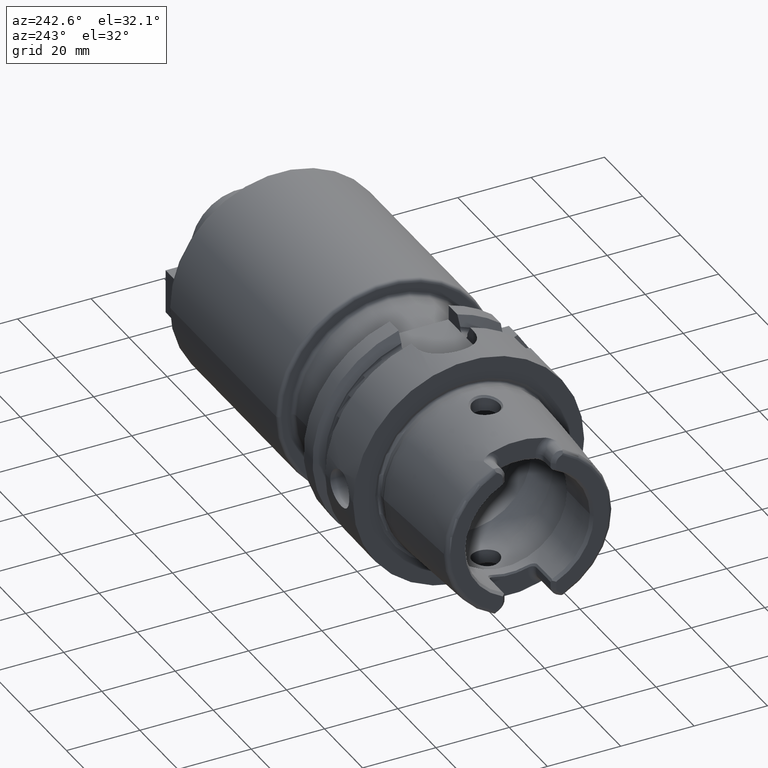
[diagram: clean part render]
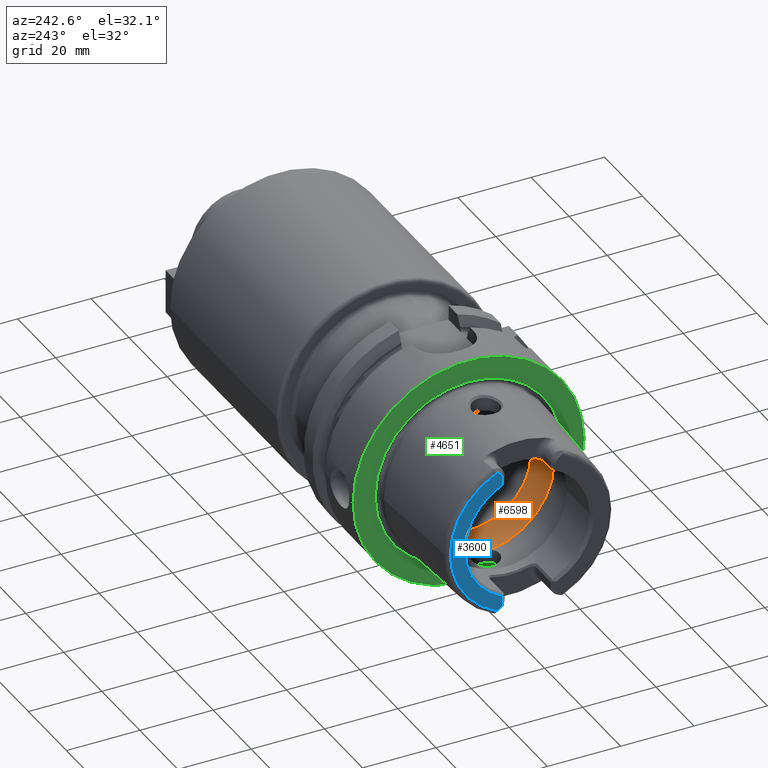
[diagram: same view with three faces highlighted in distinct colors, each labeled with its STEP entity id]
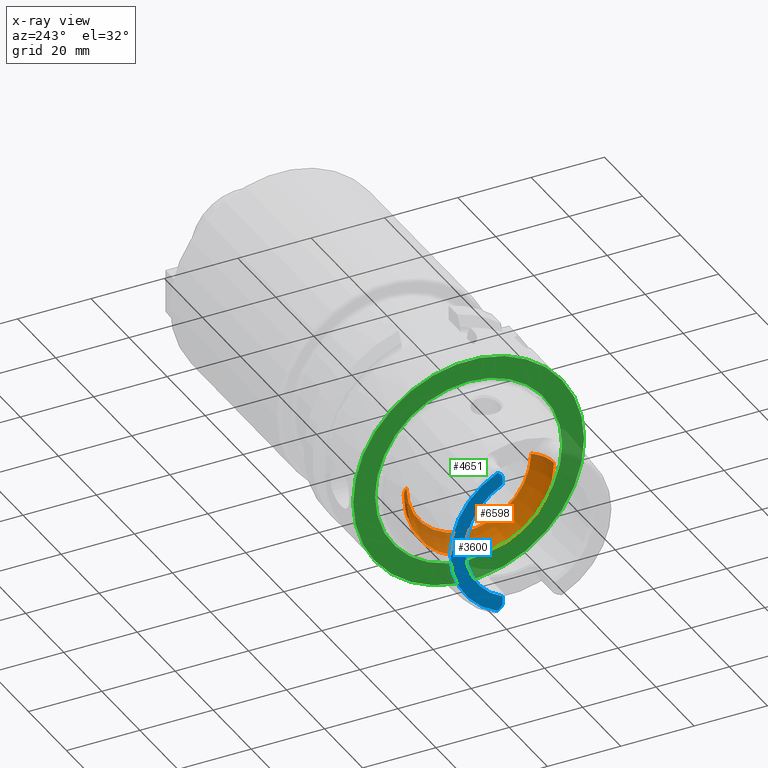
[diagram: x-ray of the same camera — body ghosted, the three highlighted faces saturated]
A machine part, auxiliary view with three faces highlighted in distinct colors.
The next image is the same camera in x-ray (body ghosted, the three faces saturated) — at least one of them is partly hidden behind the body in this view.
Their STEP definitions:

[orange] entity #6598 — the highlighted toroidal blend (fillet) surface has major radius 12 mm and minor (blend) radius 8 mm.
#2586=CARTESIAN_POINT('',(-6.344997998398E0,0.E0,0.E0));
#2587=DIRECTION('',(-1.E0,0.E0,0.E0));
#2588=DIRECTION('',(0.E0,-1.324147307845E-1,-9.911944002421E-1));
#2589=AXIS2_PLACEMENT_3D('',#2586,#2587,#2588);
#2599=CARTESIAN_POINT('',(-6.344997998398E0,0.E0,0.E0));
#2600=DIRECTION('',(-1.E0,0.E0,0.E0));
#2601=DIRECTION('',(0.E0,1.E0,0.E0));
#2602=AXIS2_PLACEMENT_3D('',#2599,#2600,#2601);
#2604=CARTESIAN_POINT('',(-6.344997998398E0,2.648294615690E0,
-1.982388800484E1));
#2605=CARTESIAN_POINT('',(-6.231006837183E0,2.534014746903E0,
-1.983915477598E1));
#2606=CARTESIAN_POINT('',(-6.017025196500E0,2.289847772066E0,
-1.986482090135E1));
#2607=CARTESIAN_POINT('',(-5.744951143506E0,1.883597112482E0,
-1.989126748234E1));
#2608=CARTESIAN_POINT('',(-5.525878619397E0,1.440092942940E0,
-1.990841427492E1));
#2609=CARTESIAN_POINT('',(-5.367928580614E0,9.752961668640E-1,
-1.991846807626E1));
#2610=CARTESIAN_POINT('',(-5.271318281982E0,4.905129038781E-1,
-1.992366853166E1));
#2611=CARTESIAN_POINT('',(-5.25E0,1.634283701959E-1,-1.992470689575E1));
#2612=CARTESIAN_POINT('',(-5.25E0,0.E0,-1.992470689575E1));
#2614=CARTESIAN_POINT('',(-6.344997998398E0,1.2E1,0.E0));
#2615=DIRECTION('',(0.E0,0.E0,1.E0));
#2616=DIRECTION('',(7.806247497998E-1,6.25E-1,0.E0));
#2617=AXIS2_PLACEMENT_3D('',#2614,#2615,#2616);
#2619=CARTESIAN_POINT('',(-1.E-1,0.E0,0.E0));
#2620=DIRECTION('',(-1.E0,0.E0,0.E0));
#2621=DIRECTION('',(0.E0,1.E0,0.E0));
#2622=AXIS2_PLACEMENT_3D('',#2619,#2620,#2621);
#2624=CARTESIAN_POINT('',(-6.344997998398E0,-1.2E1,0.E0));
#2625=DIRECTION('',(0.E0,0.E0,-1.E0));
#2626=DIRECTION('',(7.806247497998E-1,-6.25E-1,0.E0));
#2627=AXIS2_PLACEMENT_3D('',#2624,#2625,#2626);
#2629=CARTESIAN_POINT('',(-5.25E0,0.E0,-1.992470689575E1));
#2630=CARTESIAN_POINT('',(-5.25E0,-1.633406105217E-1,-1.992470689575E1));
#2631=CARTESIAN_POINT('',(-5.271288835069E0,-4.903023440841E-1,
-1.992367004204E1));
#2632=CARTESIAN_POINT('',(-5.367909615515E0,-9.752378390196E-1,
-1.991846919896E1));
#2633=CARTESIAN_POINT('',(-5.525833514658E0,-1.439976302563E0,
-1.990841729053E1));
#2634=CARTESIAN_POINT('',(-5.744910891080E0,-1.883544144465E0,
-1.989127157512E1));
#2635=CARTESIAN_POINT('',(-6.017104191130E0,-2.289956477197E0,
-1.986481279983E1));
#2636=CARTESIAN_POINT('',(-6.231050600033E0,-2.534058620591E0,
-1.983914891484E1));
#2637=CARTESIAN_POINT('',(-6.344997998398E0,-2.648294615690E0,
-1.982388800484E1));
#2893=CARTESIAN_POINT('',(-1.E-1,1.7E1,0.E0));
#2894=VERTEX_POINT('',#2893);
#2895=CARTESIAN_POINT('',(-6.344997998398E0,2.E1,0.E0));
#2896=VERTEX_POINT('',#2895);
#2905=CARTESIAN_POINT('',(-1.E-1,-1.7E1,0.E0));
#2906=VERTEX_POINT('',#2905);
#2907=CARTESIAN_POINT('',(-6.344997998398E0,-2.E1,0.E0));
#2908=VERTEX_POINT('',#2907);
#3080=VERTEX_POINT('',#2604);
#3081=VERTEX_POINT('',#2612);
#3082=VERTEX_POINT('',#2637);
#6583=CARTESIAN_POINT('',(-6.344997998398E0,0.E0,0.E0));
#6584=DIRECTION('',(1.E0,0.E0,0.E0));
#6585=DIRECTION('',(0.E0,-1.E0,0.E0));
#6586=AXIS2_PLACEMENT_3D('',#6583,#6584,#6585);
#6587=TOROIDAL_SURFACE('',#6586,1.2E1,8.E0);
#6588=ORIENTED_EDGE('',*,*,#6521,.F.);
#6589=ORIENTED_EDGE('',*,*,#6578,.F.);
#6590=ORIENTED_EDGE('',*,*,#6540,.F.);
#6592=ORIENTED_EDGE('',*,*,#6591,.T.);
#6593=ORIENTED_EDGE('',*,*,#6536,.T.);
#6594=ORIENTED_EDGE('',*,*,#6572,.F.);
#6595=ORIENTED_EDGE('',*,*,#6285,.F.);
#6596=EDGE_LOOP('',(#6588,#6589,#6590,#6592,#6593,#6594,#6595));
#6597=FACE_OUTER_BOUND('',#6596,.F.);
#6598=ADVANCED_FACE('',(#6597),#6587,.F.);
#2590=CIRCLE('',#2589,2.E1);
#2603=CIRCLE('',#2602,2.E1);
#2613=B_SPLINE_CURVE_WITH_KNOTS('',3,(#2604,#2605,#2606,#2607,#2608,#2609,#2610,
#2611,#2612),.UNSPECIFIED.,.F.,.F.,(4,1,1,1,1,1,4),(0.E0,1.666666666667E-1,
3.333333333333E-1,5.E-1,6.666666666667E-1,8.333333333333E-1,1.E0),
.UNSPECIFIED.);
#2618=CIRCLE('',#2617,8.E0);
#2623=CIRCLE('',#2622,1.7E1);
#2628=CIRCLE('',#2627,8.E0);
#2638=B_SPLINE_CURVE_WITH_KNOTS('',3,(#2629,#2630,#2631,#2632,#2633,#2634,#2635,
#2636,#2637),.UNSPECIFIED.,.F.,.F.,(4,1,1,1,1,1,4),(0.E0,1.666666666667E-1,
3.333333333333E-1,5.E-1,6.666666666667E-1,8.333333333333E-1,1.E0),
.UNSPECIFIED.);
#6285=EDGE_CURVE('',#3081,#3082,#2638,.T.);
#6521=EDGE_CURVE('',#3080,#3081,#2613,.T.);
#6536=EDGE_CURVE('',#2906,#2908,#2628,.T.);
#6540=EDGE_CURVE('',#2894,#2896,#2618,.T.);
#6572=EDGE_CURVE('',#3082,#2908,#2590,.T.);
#6578=EDGE_CURVE('',#2896,#3080,#2603,.T.);
#6591=EDGE_CURVE('',#2894,#2906,#2623,.T.);

[blue] entity #3600 — the highlighted planar face has unit normal (1, 0, 0).
#215=CARTESIAN_POINT('',(-3.2E1,0.E0,0.E0));
#216=DIRECTION('',(-1.E0,0.E0,0.E0));
#217=DIRECTION('',(0.E0,4.056746540583E-1,9.140175463604E-1));
#218=AXIS2_PLACEMENT_3D('',#215,#216,#217);
#289=DIRECTION('',(0.E0,0.E0,1.E0));
#290=VECTOR('',#289,1.666552168805E0);
#291=CARTESIAN_POINT('',(-3.2E1,7.27E0,-1.767E1));
#292=LINE('',#291,#290);
#293=CARTESIAN_POINT('',(-3.2E1,9.27E0,-1.767E1));
#294=DIRECTION('',(1.E0,0.E0,0.E0));
#295=DIRECTION('',(0.E0,-1.E0,0.E0));
#296=AXIS2_PLACEMENT_3D('',#293,#294,#295);
#298=DIRECTION('',(0.E0,-8.373245684230E-1,5.467061067112E-1));
#299=VECTOR('',#298,6.882400885956E-1);
#300=CARTESIAN_POINT('',(-3.2E1,8.752868121732E0,-1.972091419616E1));
#301=LINE('',#300,#299);
#302=DIRECTION('',(0.E0,-8.373245684230E-1,-5.467061067112E-1));
#303=VECTOR('',#302,6.882400885957E-1);
#304=CARTESIAN_POINT('',(-3.2E1,8.752868121732E0,1.972091419616E1));
#305=LINE('',#304,#303);
#306=CARTESIAN_POINT('',(-3.2E1,9.27E0,1.767E1));
#307=DIRECTION('',(-1.E0,0.E0,0.E0));
#308=DIRECTION('',(0.E0,-1.E0,0.E0));
#309=AXIS2_PLACEMENT_3D('',#306,#307,#308);
#311=DIRECTION('',(0.E0,0.E0,1.E0));
#312=VECTOR('',#311,1.666552168805E0);
#313=CARTESIAN_POINT('',(-3.2E1,7.27E0,1.600344783120E1));
#314=LINE('',#313,#312);
#346=CARTESIAN_POINT('',(-3.2E1,0.E0,0.E0));
#347=DIRECTION('',(1.E0,0.E0,0.E0));
#348=DIRECTION('',(0.E0,4.136004510727E-1,-9.104584926686E-1));
#349=AXIS2_PLACEMENT_3D('',#346,#347,#348);
#2944=CARTESIAN_POINT('',(-3.2E1,7.27E0,1.600344783120E1));
#2945=CARTESIAN_POINT('',(-3.2E1,7.27E0,1.767E1));
#2946=VERTEX_POINT('',#2944);
#2947=VERTEX_POINT('',#2945);
#2948=CARTESIAN_POINT('',(-3.2E1,8.176587786578E0,1.934464913685E1));
#2949=VERTEX_POINT('',#2948);
#2950=CARTESIAN_POINT('',(-3.2E1,8.752868121732E0,1.972091419616E1));
#2951=VERTEX_POINT('',#2950);
#3040=CARTESIAN_POINT('',(-3.2E1,7.27E0,-1.767E1));
#3041=CARTESIAN_POINT('',(-3.2E1,7.27E0,-1.600344783120E1));
#3042=VERTEX_POINT('',#3040);
#3043=VERTEX_POINT('',#3041);
#3044=CARTESIAN_POINT('',(-3.2E1,8.176587786578E0,-1.934464913685E1));
#3045=VERTEX_POINT('',#3044);
#3046=CARTESIAN_POINT('',(-3.2E1,8.752868121732E0,-1.972091419616E1));
#3047=VERTEX_POINT('',#3046);
#3579=CARTESIAN_POINT('',(-3.2E1,0.E0,0.E0));
#3580=DIRECTION('',(1.E0,0.E0,0.E0));
#3581=DIRECTION('',(0.E0,-1.E0,0.E0));
#3582=AXIS2_PLACEMENT_3D('',#3579,#3580,#3581);
#3583=PLANE('',#3582);
#3585=ORIENTED_EDGE('',*,*,#3584,.F.);
#3587=ORIENTED_EDGE('',*,*,#3586,.T.);
#3588=ORIENTED_EDGE('',*,*,#3569,.F.);
#3589=ORIENTED_EDGE('',*,*,#3536,.F.);
#3591=ORIENTED_EDGE('',*,*,#3590,.T.);
#3593=ORIENTED_EDGE('',*,*,#3592,.F.);
#3595=ORIENTED_EDGE('',*,*,#3594,.F.);
#3597=ORIENTED_EDGE('',*,*,#3596,.F.);
#3598=EDGE_LOOP('',(#3585,#3587,#3588,#3589,#3591,#3593,#3595,#3597));
#3599=FACE_OUTER_BOUND('',#3598,.F.);
#3600=ADVANCED_FACE('',(#3599),#3583,.F.);
#219=CIRCLE('',#218,2.157607835286E1);
#297=CIRCLE('',#296,2.E0);
#310=CIRCLE('',#309,2.E0);
#350=CIRCLE('',#349,1.757735026919E1);
#3536=EDGE_CURVE('',#2951,#3047,#219,.T.);
#3569=EDGE_CURVE('',#3047,#3045,#301,.T.);
#3584=EDGE_CURVE('',#3042,#3043,#292,.T.);
#3586=EDGE_CURVE('',#3042,#3045,#297,.T.);
#3590=EDGE_CURVE('',#2951,#2949,#305,.T.);
#3592=EDGE_CURVE('',#2947,#2949,#310,.T.);
#3594=EDGE_CURVE('',#2946,#2947,#314,.T.);
#3596=EDGE_CURVE('',#3043,#2946,#350,.T.);

[green] entity #4651 — the highlighted planar face has unit normal (1, 0, 0).
#1068=CARTESIAN_POINT('',(-1.421085471520E-14,0.E0,0.E0));
#1069=DIRECTION('',(1.E0,0.E0,0.E0));
#1070=DIRECTION('',(0.E0,1.E0,0.E0));
#1071=AXIS2_PLACEMENT_3D('',#1068,#1069,#1070);
#1073=CARTESIAN_POINT('',(-1.421085471520E-14,0.E0,0.E0));
#1074=DIRECTION('',(-1.E0,0.E0,0.E0));
#1075=DIRECTION('',(0.E0,1.E0,0.E0));
#1076=AXIS2_PLACEMENT_3D('',#1073,#1074,#1075);
#1078=CARTESIAN_POINT('',(0.E0,0.E0,0.E0));
#1079=DIRECTION('',(-1.E0,0.E0,0.E0));
#1080=DIRECTION('',(0.E0,-1.E0,0.E0));
#1081=AXIS2_PLACEMENT_3D('',#1078,#1079,#1080);
#1083=CARTESIAN_POINT('',(0.E0,0.E0,0.E0));
#1084=DIRECTION('',(-1.E0,0.E0,0.E0));
#1085=DIRECTION('',(0.E0,1.E0,0.E0));
#1086=AXIS2_PLACEMENT_3D('',#1083,#1084,#1085);
#2853=CARTESIAN_POINT('',(-1.421085471520E-14,3.15E1,0.E0));
#2854=CARTESIAN_POINT('',(-1.421085471520E-14,-3.15E1,0.E0));
#2855=VERTEX_POINT('',#2853);
#2856=VERTEX_POINT('',#2854);
#2881=CARTESIAN_POINT('',(0.E0,-2.549042414966E1,0.E0));
#2882=VERTEX_POINT('',#2881);
#2883=CARTESIAN_POINT('',(0.E0,2.549042414966E1,0.E0));
#2884=VERTEX_POINT('',#2883);
#4636=CARTESIAN_POINT('',(0.E0,0.E0,0.E0));
#4637=DIRECTION('',(1.E0,0.E0,0.E0));
#4638=DIRECTION('',(0.E0,-1.E0,0.E0));
#4639=AXIS2_PLACEMENT_3D('',#4636,#4637,#4638);
#4640=PLANE('',#4639);
#4642=ORIENTED_EDGE('',*,*,#4641,.T.);
#4644=ORIENTED_EDGE('',*,*,#4643,.F.);
#4645=EDGE_LOOP('',(#4642,#4644));
#4646=FACE_OUTER_BOUND('',#4645,.F.);
#4647=ORIENTED_EDGE('',*,*,#4631,.T.);
#4648=ORIENTED_EDGE('',*,*,#4615,.T.);
#4649=EDGE_LOOP('',(#4647,#4648));
#4650=FACE_BOUND('',#4649,.F.);
#4651=ADVANCED_FACE('',(#4646,#4650),#4640,.F.);
#1072=CIRCLE('',#1071,3.15E1);
#1077=CIRCLE('',#1076,3.15E1);
#1082=CIRCLE('',#1081,2.549042414966E1);
#1087=CIRCLE('',#1086,2.549042414966E1);
#4615=EDGE_CURVE('',#2884,#2882,#1087,.T.);
#4631=EDGE_CURVE('',#2882,#2884,#1082,.T.);
#4641=EDGE_CURVE('',#2855,#2856,#1072,.T.);
#4643=EDGE_CURVE('',#2855,#2856,#1077,.T.);